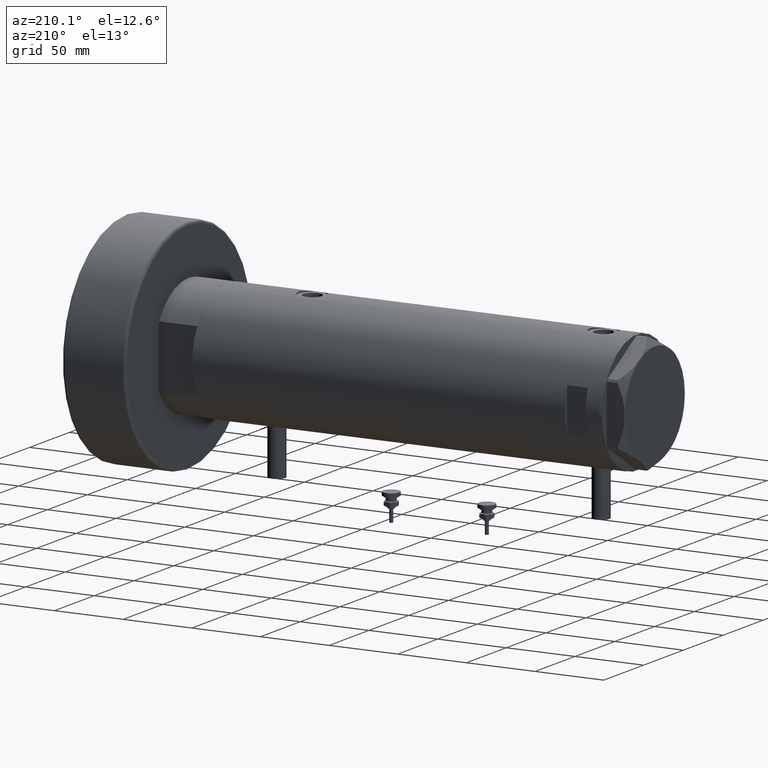
[diagram: clean part render]
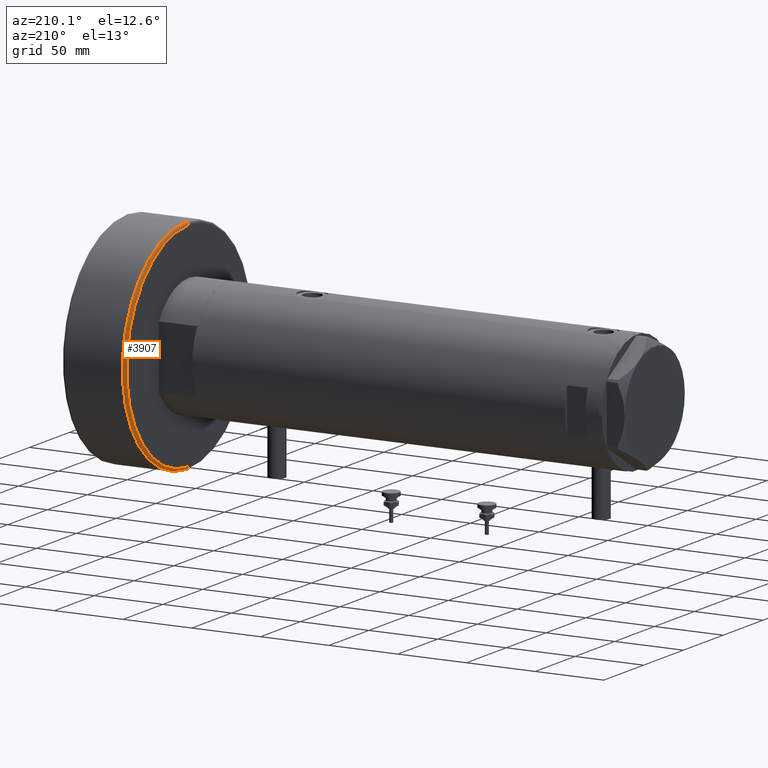
[diagram: same view with one face highlighted and labeled with its STEP entity id]
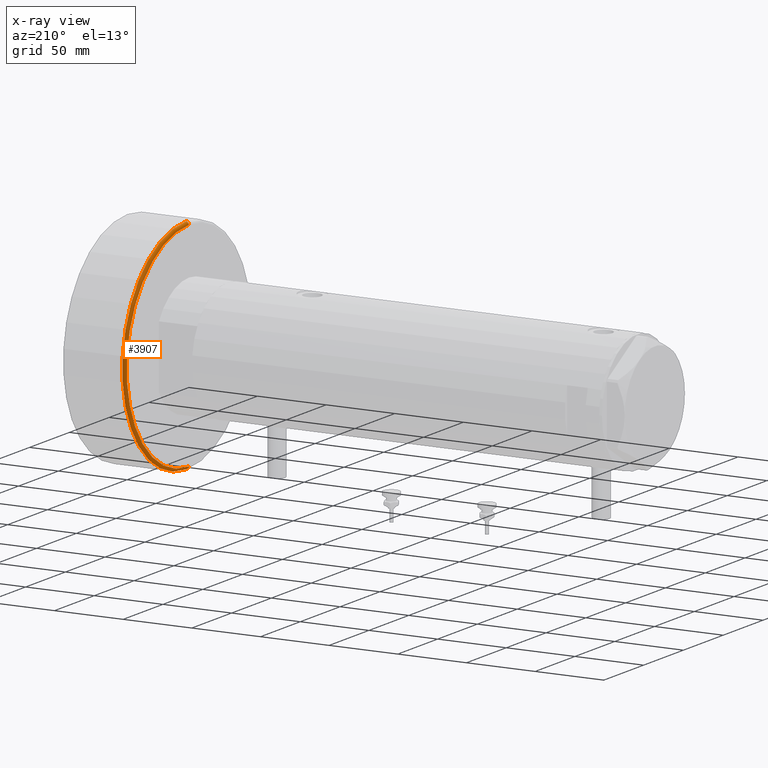
[diagram: x-ray of the same camera — body ghosted, the highlighted face saturated]
A machine part, auxiliary view. The second image highlights one B-rep face of the part: STEP entity #3907.
The next image is the same camera in x-ray: the body ghosted, the highlighted face saturated — about 0% of this face is hidden behind the body in this view.
In plain terms, the highlighted toroidal blend (fillet) surface has major radius 78 mm and minor (blend) radius 2 mm.
Its self-contained STEP definition (entity closure, byte-faithful):
#159 = TOROIDAL_SURFACE ( 'NONE', #4698, 78.00000000000000000, 2.000000000000000000 ) ;
#222 = CARTESIAN_POINT ( 'NONE',  ( 78.00000000000000000, 0.000000000000000000, 2.000000000000001776 ) ) ;
#232 = CIRCLE ( 'NONE', #534, 2.000000000000000000 ) ;
#354 = VERTEX_POINT ( 'NONE', #1942 ) ;
#534 = AXIS2_PLACEMENT_3D ( 'NONE', #222, #2638, #4521 ) ;
#1293 = AXIS2_PLACEMENT_3D ( 'NONE', #3209, #4223, #3144 ) ;
#1398 = ORIENTED_EDGE ( 'NONE', *, *, #3053, .F. ) ;
#1448 = DIRECTION ( 'NONE',  ( 1.000000000000000000, 0.000000000000000000, 0.000000000000000000 ) ) ;
#1605 = ORIENTED_EDGE ( 'NONE', *, *, #3759, .T. ) ;
#1634 = VERTEX_POINT ( 'NONE', #5367 ) ;
#1789 = AXIS2_PLACEMENT_3D ( 'NONE', #3805, #5411, #5316 ) ;
#1831 = EDGE_CURVE ( 'NONE', #354, #3467, #232, .T. ) ;
#1883 = CIRCLE ( 'NONE', #3935, 80.00000000000000000 ) ;
#1930 = DIRECTION ( 'NONE',  ( 1.000000000000000000, 0.000000000000000000, 0.000000000000000000 ) ) ;
#1942 = CARTESIAN_POINT ( 'NONE',  ( 78.00000000000000000, 0.000000000000000000, 0.000000000000000000 ) ) ;
#2186 = EDGE_CURVE ( 'NONE', #3467, #1634, #1883, .T. ) ;
#2378 = FACE_OUTER_BOUND ( 'NONE', #5754, .T. ) ;
#2638 = DIRECTION ( 'NONE',  ( 0.000000000000000000, -1.000000000000000000, 0.000000000000000000 ) ) ;
#2911 = CARTESIAN_POINT ( 'NONE',  ( 0.000000000000000000, 0.000000000000000000, 2.000000000000001776 ) ) ;
#3015 = CIRCLE ( 'NONE', #1293, 2.000000000000001776 ) ;
#3053 = EDGE_CURVE ( 'NONE', #4297, #354, #5302, .T. ) ;
#3144 = DIRECTION ( 'NONE',  ( -1.000000000000000000, 1.224646799147349509E-16, 0.000000000000000000 ) ) ;
#3209 = CARTESIAN_POINT ( 'NONE',  ( -78.00000000000000000, 9.552245033349355756E-15, 2.000000000000001776 ) ) ;
#3346 = CARTESIAN_POINT ( 'NONE',  ( 80.00000000000000000, 9.797174393178826052E-15, 2.000000000000001776 ) ) ;
#3467 = VERTEX_POINT ( 'NONE', #3346 ) ;
#3561 = ORIENTED_EDGE ( 'NONE', *, *, #2186, .F. ) ;
#3759 = EDGE_CURVE ( 'NONE', #4297, #1634, #3015, .T. ) ;
#3805 = CARTESIAN_POINT ( 'NONE',  ( 0.000000000000000000, 0.000000000000000000, 0.000000000000000000 ) ) ;
#3907 = ADVANCED_FACE ( 'NONE', ( #2378 ), #159, .T. ) ;
#3935 = AXIS2_PLACEMENT_3D ( 'NONE', #6298, #5294, #1930 ) ;
#4223 = DIRECTION ( 'NONE',  ( 1.224646799147353207E-16, 1.000000000000000000, -0.000000000000000000 ) ) ;
#4297 = VERTEX_POINT ( 'NONE', #5870 ) ;
#4521 = DIRECTION ( 'NONE',  ( 0.000000000000000000, 0.000000000000000000, -1.000000000000000000 ) ) ;
#4698 = AXIS2_PLACEMENT_3D ( 'NONE', #2911, #5295, #1448 ) ;
#4933 = ORIENTED_EDGE ( 'NONE', *, *, #1831, .F. ) ;
#5294 = DIRECTION ( 'NONE',  ( 0.000000000000000000, 0.000000000000000000, 1.000000000000000000 ) ) ;
#5295 = DIRECTION ( 'NONE',  ( 0.000000000000000000, 0.000000000000000000, 1.000000000000000000 ) ) ;
#5302 = CIRCLE ( 'NONE', #1789, 78.00000000000000000 ) ;
#5316 = DIRECTION ( 'NONE',  ( 1.000000000000000000, 0.000000000000000000, 0.000000000000000000 ) ) ;
#5367 = CARTESIAN_POINT ( 'NONE',  ( -80.00000000000000000, 0.000000000000000000, 2.000000000000001776 ) ) ;
#5411 = DIRECTION ( 'NONE',  ( -0.000000000000000000, -0.000000000000000000, -1.000000000000000000 ) ) ;
#5754 = EDGE_LOOP ( 'NONE', ( #1398, #1605, #3561, #4933 ) ) ;
#5870 = CARTESIAN_POINT ( 'NONE',  ( -78.00000000000000000, 9.674709713264090904E-15, 0.000000000000000000 ) ) ;
#6298 = CARTESIAN_POINT ( 'NONE',  ( 0.000000000000000000, 0.000000000000000000, 2.000000000000001776 ) ) ;